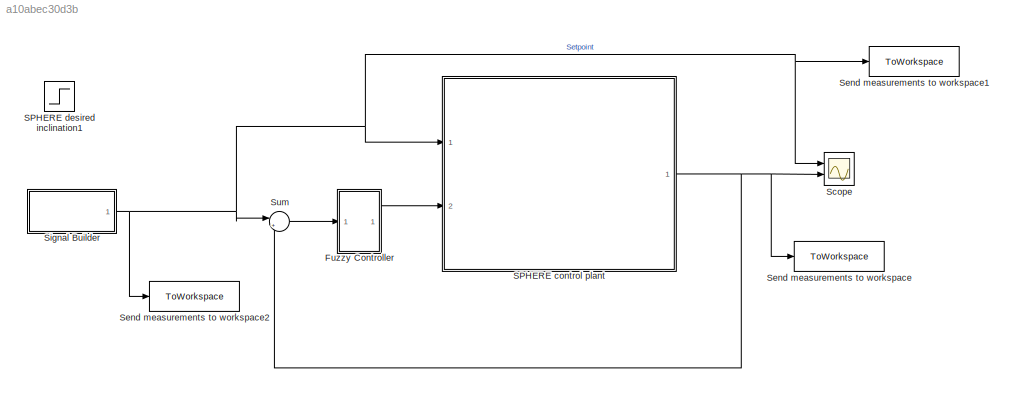
MODEL slx_a10abec30d3b
KIND model
CONFIG AbsTol = auto
CONFIG EnableMultiTasking = off
CONFIG FixedStep = 0.01428571
CONFIG MaxStep = auto
CONFIG MinStep = auto
CONFIG RelTol = 1e-3
CONFIG SampleTimeConstraint = Unconstrained
CONFIG Solver = ode4
CONFIG SolverName = ode4
CONFIG StartTime = 0.0
CONFIG StopTime = 30
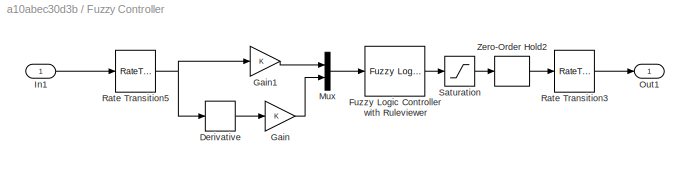
BLOCK [SubSystem] Fuzzy Controller
  Ports = [1, 1]
  RequestExecContextInheritance = off
BLOCK [Derivative] Fuzzy Controller/Derivative
BLOCK [Reference] Fuzzy Controller/Fuzzy Logic Controller with Ruleviewer  REF=fuzblock/Fuzzy Logic   (lib defined in mdl_858b3b3e7478)
Controller 
with Ruleviewer
  Ports = [1, 1]
  SourceBlock = fuzblock/Fuzzy Logic \nController \nwith Ruleviewer
  SourceProductBaseCode = FL
  SourceType = Fuzzy Inference System
BLOCK [Gain] Fuzzy Controller/Gain
BLOCK [Gain] Fuzzy Controller/Gain1
BLOCK [Inport] Fuzzy Controller/In1
BLOCK [Mux] Fuzzy Controller/Mux
  DisplayOption = bar
  Inputs = 2
  Ports = [2, 1]
BLOCK [Outport] Fuzzy Controller/Out1
BLOCK [RateTransition] Fuzzy Controller/Rate Transition3
BLOCK [RateTransition] Fuzzy Controller/Rate Transition5
BLOCK [Saturate] Fuzzy Controller/Saturation
  LowerLimit = -60
  UpperLimit = 60
BLOCK [ZeroOrderHold] Fuzzy Controller/Zero-Order Hold2
  SampleTime = -1
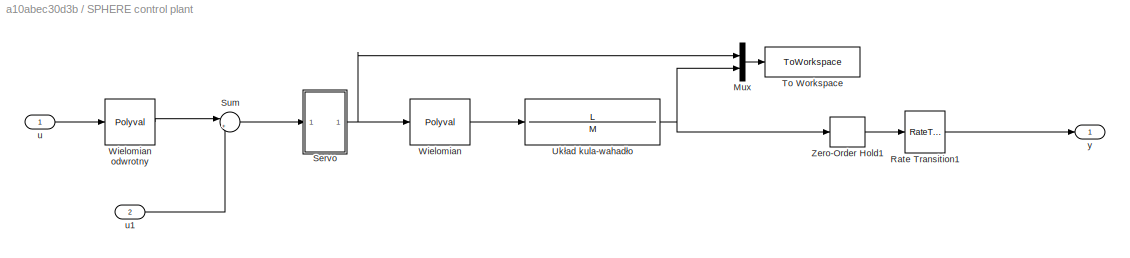
BLOCK [SubSystem] SPHERE control plant
  Ports = [2, 1]
  RequestExecContextInheritance = off
BLOCK [Mux] SPHERE control plant/Mux
  DisplayOption = bar
  Inputs = 2
  Ports = [2, 1]
BLOCK [RateTransition] SPHERE control plant/Rate Transition1
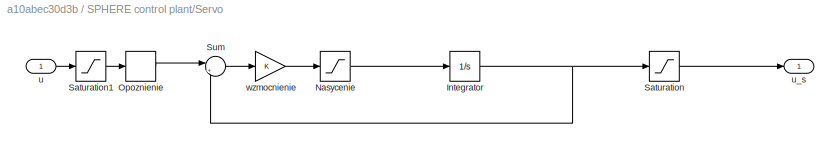
BLOCK [SubSystem] SPHERE control plant/Servo
  Ports = [1, 1]
  RequestExecContextInheritance = off
BLOCK [Integrator] SPHERE control plant/Servo/Integrator
  Ports = [1, 1]
BLOCK [Saturate] SPHERE control plant/Servo/Nasycenie
  LowerLimit = Smin
  UpperLimit = Smax
BLOCK [TransportDelay] SPHERE control plant/Servo/Opoznienie
  DelayTime = Top
  Ports = [1, 1]
BLOCK [Saturate] SPHERE control plant/Servo/Saturation
  LowerLimit = -60
  UpperLimit = 60
BLOCK [Saturate] SPHERE control plant/Servo/Saturation1
  LowerLimit = -60
  UpperLimit = 60
BLOCK [Sum] SPHERE control plant/Servo/Sum
  Inputs = |+-
  Ports = [2, 1]
BLOCK [Inport] SPHERE control plant/Servo/u
BLOCK [Outport] SPHERE control plant/Servo/u_s
BLOCK [Gain] SPHERE control plant/Servo/wzmocnienie
  Gain = K
BLOCK [Sum] SPHERE control plant/Sum
  Inputs = |++
  Ports = [2, 1]
BLOCK [ToWorkspace] SPHERE control plant/To Workspace
  MaxDataPoints = inf
  Ports = [1]
  SampleTime = -1
  SaveFormat = Structure With Time
  VariableName = robot_data
BLOCK [TransferFcn] SPHERE control plant/Układ kula-wahadło
  Denominator = M
  Numerator = L
BLOCK [Polyval] SPHERE control plant/Wielomian
  Coefs = [-0.000067 -0.000287 0.871698 0]
BLOCK [Polyval] SPHERE control plant/Wielomian odwrotny
  Coefs = [0.000325 0.001274 1.044515 0]
BLOCK [ZeroOrderHold] SPHERE control plant/Zero-Order Hold1
  SampleTime = -1
BLOCK [Inport] SPHERE control plant/u
BLOCK [Inport] SPHERE control plant/u1
  Port = 2
BLOCK [Outport] SPHERE control plant/y
BLOCK [Step] SPHERE desired inclination1
  After = Final_val
  Commented = on
  SampleTime = 0
  Time = Step_time
BLOCK [Scope] Scope
  Floating = off
  NumInputPorts = 2
  Ports = [2]
  ScopeSpecificationString = Simulink.scopes.TimeScopeBlockCfg('CurrentConfiguration', extmgr.ConfigurationSet(extmgr.Configuration('Core','General UI',true),extmgr.Configuration('Core','Source UI',true),extmgr.Configuration('Sources','WiredSimulink',true),extmgr.Configuration('Visuals','Time Domain',true,'SerializedDisplays',{struct('MinYLimReal','-29.06512','MaxYLimReal','26.86262','YLabelReal','','MinYLimMag','0.00000','Ma...<+1430ch>
BLOCK [ToWorkspace] Send measurements to workspace
  FixptAsFi = on
  MaxDataPoints = inf
  Ports = [1]
  SampleTime = -1
  SaveFormat = Timeseries
  VariableName = simout
BLOCK [ToWorkspace] Send measurements to workspace1
  FixptAsFi = on
  MaxDataPoints = inf
  Ports = [1]
  SampleTime = -1
  SaveFormat = Timeseries
  VariableName = simout1
BLOCK [ToWorkspace] Send measurements to workspace2
  FixptAsFi = on
  MaxDataPoints = inf
  Ports = [1]
  SampleTime = -1
  SaveFormat = Timeseries
  VariableName = simout2
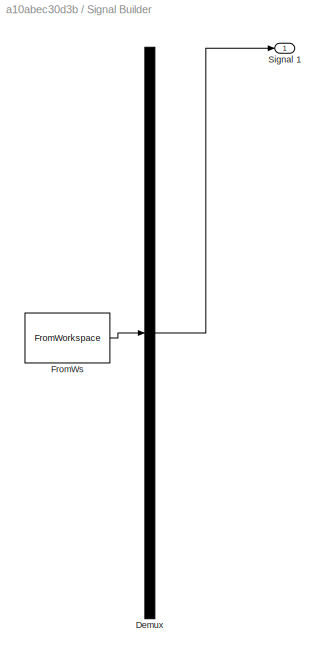
BLOCK [SubSystem] Signal Builder
  ClipboardFcn = sigbuilder_block('clipboard');
  CloseFcn = sigbuilder_block('close');
  ContinueFcn = sigbuilder_block('continue');
  CopyFcn = sigbuilder_block('copy');
  DeleteFcn = sigbuilder_block('delete');
  LoadFcn = sigbuilder_block('load');
  MaskHideContents = on
  ModelCloseFcn = sigbuilder_block('modelClose');
  NameChangeFcn = sigbuilder_block('namechange');
  OpenFcn = sigbuilder_block('open',[90.75 122.25 550.5 399.75 ]);
  PauseFcn = sigbuilder_block('pause');
  Ports = [0, 1]
  PreSaveFcn = sigbuilder_block('preSave');
  RequestExecContextInheritance = off
  StartFcn = sigbuilder_block('start');
  StopFcn = sigbuilder_block('stop');
  Tag = STV Subsys
BLOCK [Demux] Signal Builder/Demux
  DisplayOption = none
  Outputs = 1
  Ports = [1, 1]
  Tag = STV Demux
BLOCK [FromWorkspace] Signal Builder/FromWs
  Tag = STV FromWs
  VariableName = tuvar
BLOCK [Outport] Signal Builder/Signal 1
  Tag = STV Outport
BLOCK [Sum] Sum
  Inputs = |+-
  Ports = [2, 1]
LINE Fuzzy Controller/Derivative:1 -> Fuzzy Controller/Gain:1
LINE Fuzzy Controller/Fuzzy Logic Controller with Ruleviewer:1 -> Fuzzy Controller/Saturation:1
LINE Fuzzy Controller/Gain1:1 -> Fuzzy Controller/Mux:1
LINE Fuzzy Controller/Gain:1 -> Fuzzy Controller/Mux:2
LINE Fuzzy Controller/In1:1 -> Fuzzy Controller/Rate Transition5:1
LINE Fuzzy Controller/Mux:1 -> Fuzzy Controller/Fuzzy Logic Controller with Ruleviewer:1
LINE Fuzzy Controller/Rate Transition3:1 -> Fuzzy Controller/Out1:1
NET Fuzzy Controller/Rate Transition5:1 -> Fuzzy Controller/Derivative:1, Fuzzy Controller/Gain1:1
LINE Fuzzy Controller/Saturation:1 -> Fuzzy Controller/Zero-Order Hold2:1
LINE Fuzzy Controller/Zero-Order Hold2:1 -> Fuzzy Controller/Rate Transition3:1
LINE Fuzzy Controller:1 -> SPHERE control plant:2
LINE SPHERE control plant/Mux:1 -> SPHERE control plant/To Workspace:1
LINE SPHERE control plant/Rate Transition1:1 -> SPHERE control plant/y:1
NET SPHERE control plant/Servo/Integrator:1 -> SPHERE control plant/Servo/Saturation:1, SPHERE control plant/Servo/Sum:2
LINE SPHERE control plant/Servo/Nasycenie:1 -> SPHERE control plant/Servo/Integrator:1
LINE SPHERE control plant/Servo/Opoznienie:1 -> SPHERE control plant/Servo/Sum:1
LINE SPHERE control plant/Servo/Saturation1:1 -> SPHERE control plant/Servo/Opoznienie:1
LINE SPHERE control plant/Servo/Saturation:1 -> SPHERE control plant/Servo/u_s:1
LINE SPHERE control plant/Servo/Sum:1 -> SPHERE control plant/Servo/wzmocnienie:1
LINE SPHERE control plant/Servo/u:1 -> SPHERE control plant/Servo/Saturation1:1
LINE SPHERE control plant/Servo/wzmocnienie:1 -> SPHERE control plant/Servo/Nasycenie:1
NET SPHERE control plant/Servo:1 -> SPHERE control plant/Mux:1, SPHERE control plant/Wielomian:1
LINE SPHERE control plant/Sum:1 -> SPHERE control plant/Servo:1
NET SPHERE control plant/Układ kula-wahadło:1 -> SPHERE control plant/Mux:2, SPHERE control plant/Zero-Order Hold1:1
LINE SPHERE control plant/Wielomian odwrotny:1 -> SPHERE control plant/Sum:1
LINE SPHERE control plant/Wielomian:1 -> SPHERE control plant/Układ kula-wahadło:1
LINE SPHERE control plant/Zero-Order Hold1:1 -> SPHERE control plant/Rate Transition1:1
LINE SPHERE control plant/u1:1 -> SPHERE control plant/Sum:2
LINE SPHERE control plant/u:1 -> SPHERE control plant/Wielomian odwrotny:1
NET SPHERE control plant:1 -> Scope:2, Send measurements to workspace:1, Sum:2
NET Signal Builder:1 -> SPHERE control plant:1, Scope:1, Send measurements to workspace1:1, Send measurements to workspace2:1, Sum:1
LINE Sum:1 -> Fuzzy Controller:1
note: NET lines group one-source signal fan-out (src -> all destinations, sorted); 1:1 wires keep LINE
